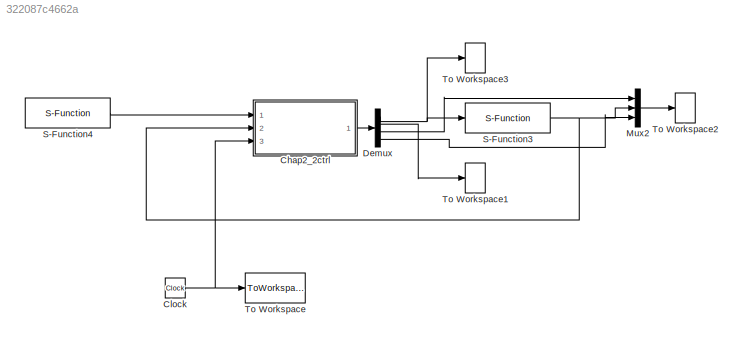
MODEL slx_322087c4662a
KIND model
CONFIG AbsTol = auto
CONFIG EnableMultiTasking = on
CONFIG FixedStep = auto
CONFIG MaxStep = 0.1
CONFIG MinStep = auto
CONFIG RelTol = 1e-3
CONFIG SampleTimeConstraint = Unconstrained
CONFIG Solver = ode15s
CONFIG SolverName = ode15s
CONFIG StartTime = 0.0
CONFIG StopTime = RunTime
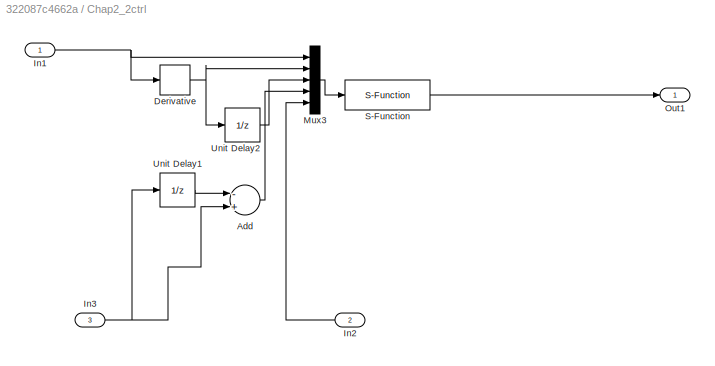
BLOCK [SubSystem] Chap2_2ctrl
  Ports = [3, 1]
  RequestExecContextInheritance = off
  Variant = off
BLOCK [Sum] Chap2_2ctrl/Add
  InputSameDT = off
  Inputs = -+
  OutDataTypeStr = Inherit: Inherit via internal rule
  Ports = [2, 1]
  SaturateOnIntegerOverflow = off
BLOCK [Derivative] Chap2_2ctrl/Derivative
BLOCK [Inport] Chap2_2ctrl/In1
  IconDisplay = Port number
BLOCK [Inport] Chap2_2ctrl/In2
  IconDisplay = Port number
  Port = 2
BLOCK [Inport] Chap2_2ctrl/In3
  IconDisplay = Port number
  Port = 3
BLOCK [Mux] Chap2_2ctrl/Mux3
  DisplayOption = bar
  Inputs = 5
  Ports = [5, 1]
BLOCK [Outport] Chap2_2ctrl/Out1
  IconDisplay = Port number
BLOCK [S-Function] Chap2_2ctrl/S-Function
  EnableBusSupport = off
  FunctionName = chap2_2ctrl
  Ports = [1, 1]
  SFcnIsStateOwnerBlock = off
  SFunctionDeploymentMode = off
  SFunctionModules = 'chap2_2ctrl'
BLOCK [UnitDelay] Chap2_2ctrl/Unit Delay1
  InputProcessing = Elements as channels (sample based)
  SampleTime = -1
BLOCK [UnitDelay] Chap2_2ctrl/Unit Delay2
  InputProcessing = Elements as channels (sample based)
  SampleTime = -1
BLOCK [Clock] Clock
BLOCK [Demux] Demux
  DisplayOption = bar
  Ports = [1, 4]
BLOCK [Mux] Mux2
  DisplayOption = bar
  Inputs = 3
  Ports = [3, 1]
BLOCK [S-Function] S-Function3
  EnableBusSupport = off
  FunctionName = chap2_2plant
  Ports = [1, 1]
  SFcnIsStateOwnerBlock = off
  SFunctionDeploymentMode = off
  SFunctionModules = 'chap2_2plant'
BLOCK [S-Function] S-Function4
  EnableBusSupport = off
  FunctionName = chap2_2input
  Ports = [0, 1]
  SFcnIsStateOwnerBlock = off
  SFunctionDeploymentMode = off
  SFunctionModules = 'chap2_2input'
BLOCK [ToWorkspace] To Workspace
  FixptAsFi = on
  MaxDataPoints = inf
  Ports = [1]
  SampleTime = -1
  Save2DSignal = 3-D array (concatenate along third dimension)
  VariableName = t
BLOCK [ToWorkspace] To Workspace1
  FixptAsFi = on
  MaxDataPoints = inf
  Ports = [1]
  SampleTime = -1
  Save2DSignal = 3-D array (concatenate along third dimension)
  VariableName = s
BLOCK [ToWorkspace] To Workspace2
  FixptAsFi = on
  MaxDataPoints = inf
  Ports = [1]
  SampleTime = -1
  Save2DSignal = 3-D array (concatenate along third dimension)
  VariableName = y
BLOCK [ToWorkspace] To Workspace3
  FixptAsFi = on
  MaxDataPoints = inf
  Ports = [1]
  SampleTime = -1
  Save2DSignal = 3-D array (concatenate along third dimension)
  VariableName = u
LINE Chap2_2ctrl/Add:1 -> Chap2_2ctrl/Mux3:4
NET Chap2_2ctrl/Derivative:1 -> Chap2_2ctrl/Mux3:2, Chap2_2ctrl/Unit Delay2:1
NET Chap2_2ctrl/In1:1 -> Chap2_2ctrl/Derivative:1, Chap2_2ctrl/Mux3:1
LINE Chap2_2ctrl/In2:1 -> Chap2_2ctrl/Mux3:5
NET Chap2_2ctrl/In3:1 -> Chap2_2ctrl/Add:2, Chap2_2ctrl/Unit Delay1:1
LINE Chap2_2ctrl/Mux3:1 -> Chap2_2ctrl/S-Function:1
LINE Chap2_2ctrl/S-Function:1 -> Chap2_2ctrl/Out1:1
LINE Chap2_2ctrl/Unit Delay1:1 -> Chap2_2ctrl/Add:1
LINE Chap2_2ctrl/Unit Delay2:1 -> Chap2_2ctrl/Mux3:3
LINE Chap2_2ctrl:1 -> Demux:1
NET Clock:1 -> Chap2_2ctrl:3, To Workspace:1
NET Demux:1 -> S-Function3:1, To Workspace3:1
LINE Demux:2 -> To Workspace1:1
LINE Demux:3 -> Mux2:1
LINE Demux:4 -> Mux2:3
LINE Mux2:1 -> To Workspace2:1
NET S-Function3:1 -> Chap2_2ctrl:2, Mux2:2
LINE S-Function4:1 -> Chap2_2ctrl:1
note: NET lines group one-source signal fan-out (src -> all destinations, sorted); 1:1 wires keep LINE
